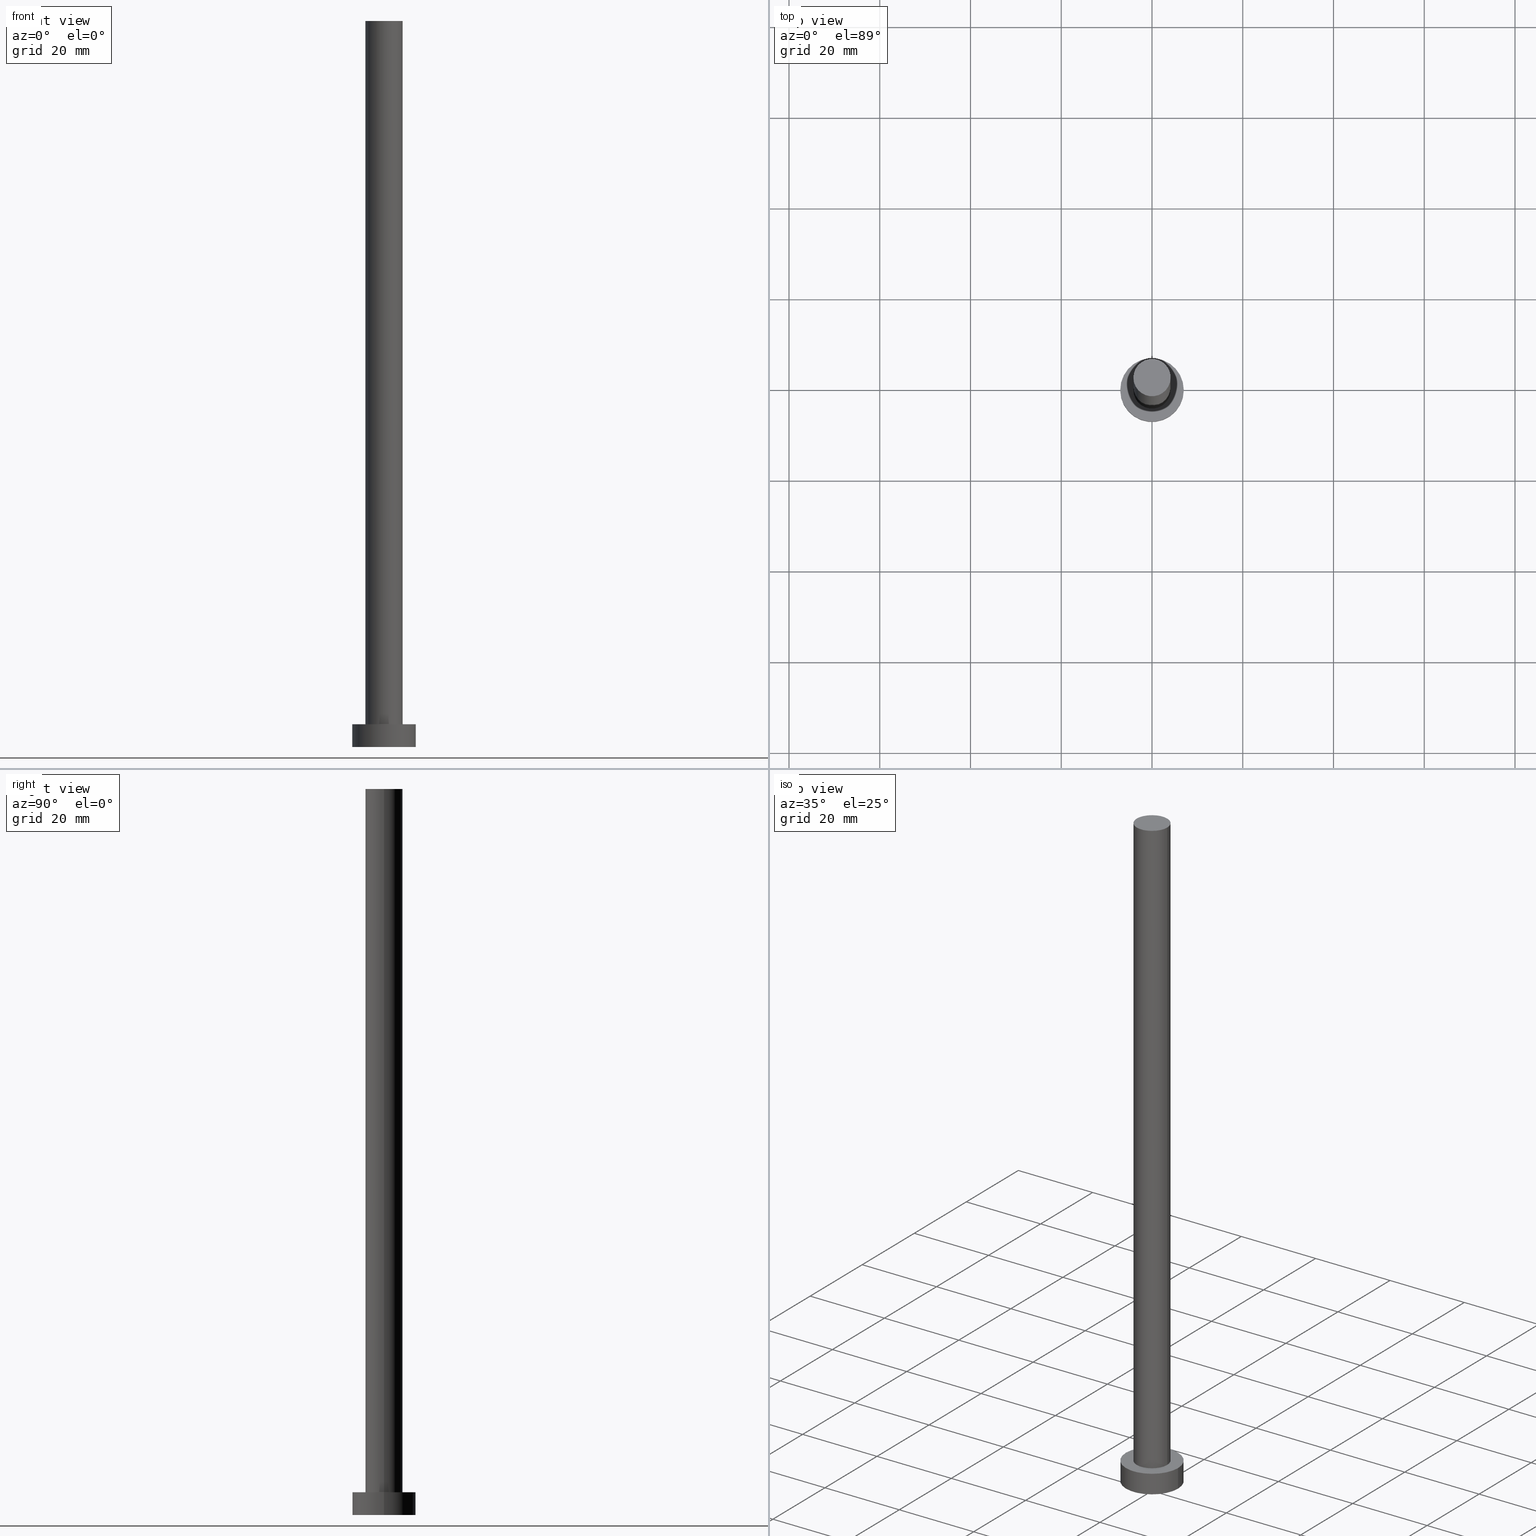
[diagram: canonical four-view strip — front | top / right | iso, engineering-drawing reading convention]
A machine part, canonical four-view strip (front | top / right | iso — engineering-drawing reading convention). The complete STEP part file that produces these views, byte-faithful:
ISO-10303-21;
HEADER;
FILE_DESCRIPTION (( 'STEP AP203' ),
    '1' );
FILE_NAME ('6110.STEP',
    '2023-02-13T14:21:29',
    ( '' ),
    ( '' ),
    'SwSTEP 2.0',
    'SolidWorks 2019',
    '' );
FILE_SCHEMA (( 'CONFIG_CONTROL_DESIGN' ));
ENDSEC;

DATA;
#1 = APPROVAL_PERSON_ORGANIZATION ( #241, #152, #120 ) ;
#2 = DIRECTION ( 'NONE',  ( -0.000000000000000000, -0.000000000000000000, -1.000000000000000000 ) ) ;
#3 = DATE_AND_TIME ( #201, #7 ) ;
#4 = DIRECTION ( 'NONE',  ( 1.000000000000000000, 0.000000000000000000, -0.000000000000000000 ) ) ;
#5 =( NAMED_UNIT ( * ) PLANE_ANGLE_UNIT ( ) SI_UNIT ( $, .RADIAN. ) );
#6 = ADVANCED_FACE ( 'NONE', ( #39 ), #236, .T. ) ;
#7 = LOCAL_TIME ( 15, 21, 29.00000000000000000, #8 ) ;
#8 = COORDINATED_UNIVERSAL_TIME_OFFSET ( 1, 0, .AHEAD. ) ;
#9 = EDGE_LOOP ( 'NONE', ( #127, #65 ) ) ;
#10 = DIRECTION ( 'NONE',  ( 1.000000000000000000, 0.000000000000000000, 0.000000000000000000 ) ) ;
#11 = COORDINATED_UNIVERSAL_TIME_OFFSET ( 1, 0, .AHEAD. ) ;
#12 = EDGE_LOOP ( 'NONE', ( #105, #55 ) ) ;
#13 = CC_DESIGN_PERSON_AND_ORGANIZATION_ASSIGNMENT ( #249, #87, ( #148 ) ) ;
#14 = CARTESIAN_POINT ( 'NONE',  ( 0.000000000000000000, 0.000000000000000000, 5.000000000000000000 ) ) ;
#15 = AXIS2_PLACEMENT_3D ( 'NONE', #253, #135, #110 ) ;
#16 = CIRCLE ( 'NONE', #84, 4.099999999999999645 ) ;
#17 = DIRECTION ( 'NONE',  ( 0.000000000000000000, 0.000000000000000000, 1.000000000000000000 ) ) ;
#18 = DIRECTION ( 'NONE',  ( 1.000000000000000000, 0.000000000000000000, 0.000000000000000000 ) ) ;
#19 = CC_DESIGN_PERSON_AND_ORGANIZATION_ASSIGNMENT ( #145, #57, ( #46 ) ) ;
#20 = ORIENTED_EDGE ( 'NONE', *, *, #112, .F. ) ;
#21 = DIRECTION ( 'NONE',  ( 0.000000000000000000, 0.000000000000000000, 1.000000000000000000 ) ) ;
#22 = CALENDAR_DATE ( 2023, 13, 2 ) ;
#23 = ORIENTED_EDGE ( 'NONE', *, *, #158, .F. ) ;
#24 = CIRCLE ( 'NONE', #162, 4.099999999999999645 ) ;
#25 = CARTESIAN_POINT ( 'NONE',  ( 0.000000000000000000, 0.000000000000000000, 160.0000000000000000 ) ) ;
#26 = PLANE ( 'NONE',  #89 ) ;
#27 = ORIENTED_EDGE ( 'NONE', *, *, #214, .T. ) ;
#28 = PLANE ( 'NONE',  #204 ) ;
#29 = SECURITY_CLASSIFICATION_LEVEL ( 'unclassified' ) ;
#30 = EDGE_LOOP ( 'NONE', ( #147, #97, #121, #254 ) ) ;
#31 = CARTESIAN_POINT ( 'NONE',  ( 0.000000000000000000, 0.000000000000000000, 0.000000000000000000 ) ) ;
#32 = CALENDAR_DATE ( 2023, 13, 2 ) ;
#33 = LOCAL_TIME ( 15, 21, 29.00000000000000000, #86 ) ;
#34 = ORIENTED_EDGE ( 'NONE', *, *, #155, .T. ) ;
#35 = DIRECTION ( 'NONE',  ( 0.000000000000000000, 0.000000000000000000, 1.000000000000000000 ) ) ;
#36 = DIRECTION ( 'NONE',  ( -1.000000000000000000, 0.000000000000000000, 0.000000000000000000 ) ) ;
#37 = CARTESIAN_POINT ( 'NONE',  ( 0.000000000000000000, 0.000000000000000000, 5.000000000000000000 ) ) ;
#38 = CIRCLE ( 'NONE', #221, 7.000000000000000000 ) ;
#39 = FACE_OUTER_BOUND ( 'NONE', #45, .T. ) ;
#40 = ORIENTED_EDGE ( 'NONE', *, *, #216, .F. ) ;
#41 = FACE_OUTER_BOUND ( 'NONE', #12, .T. ) ;
#42 = PRODUCT_DEFINITION_SHAPE ( 'NONE', 'NONE',  #206 ) ;
#43 = ADVANCED_FACE ( 'NONE', ( #126 ), #194, .T. ) ;
#44 = CARTESIAN_POINT ( 'NONE',  ( 0.000000000000000000, 0.000000000000000000, 5.000000000000000000 ) ) ;
#45 = EDGE_LOOP ( 'NONE', ( #40, #234, #170, #193 ) ) ;
#46 = PRODUCT ( '6110', '6110', '', ( #202 ) ) ;
#47 = PRODUCT_RELATED_PRODUCT_CATEGORY ( 'detail', '', ( #46 ) ) ;
#48 = AXIS2_PLACEMENT_3D ( 'NONE', #151, #255, #82 ) ;
#49 = FACE_OUTER_BOUND ( 'NONE', #63, .T. ) ;
#50 = PERSON_AND_ORGANIZATION ( #224, #153 ) ;
#51 = VECTOR ( 'NONE', #95, 1000.000000000000000 ) ;
#52 = CC_DESIGN_APPROVAL ( #152, ( #206 ) ) ;
#53 = CARTESIAN_POINT ( 'NONE',  ( 0.000000000000000000, 0.000000000000000000, 160.0000000000000000 ) ) ;
#54 = MANIFOLD_SOLID_BREP ( 'P�idat vysunut�m3', #131 ) ;
#55 = ORIENTED_EDGE ( 'NONE', *, *, #64, .F. ) ;
#56 = APPLICATION_CONTEXT ( 'configuration controlled 3d designs of mechanical parts and assemblies' ) ;
#57 = PERSON_AND_ORGANIZATION_ROLE ( 'design_owner' ) ;
#58 = EDGE_CURVE ( 'NONE', #178, #196, #106, .T. ) ;
#59 = LINE ( 'NONE', #209, #113 ) ;
#60 = APPROVAL_PERSON_ORGANIZATION ( #231, #169, #123 ) ;
#61 = VERTEX_POINT ( 'NONE', #165 ) ;
#62 = CARTESIAN_POINT ( 'NONE',  ( 0.000000000000000000, 0.000000000000000000, 160.0000000000000000 ) ) ;
#63 = EDGE_LOOP ( 'NONE', ( #246, #142 ) ) ;
#64 = EDGE_CURVE ( 'NONE', #196, #80, #128, .T. ) ;
#65 = ORIENTED_EDGE ( 'NONE', *, *, #210, .F. ) ;
#66 = CC_DESIGN_DATE_AND_TIME_ASSIGNMENT ( #174, #115, ( #206 ) ) ;
#67 = ADVANCED_FACE ( 'NONE', ( #167, #49 ), #26, .T. ) ;
#68 = AXIS2_PLACEMENT_3D ( 'NONE', #31, #122, #98 ) ;
#69 = DIRECTION ( 'NONE',  ( 0.000000000000000000, 0.000000000000000000, 1.000000000000000000 ) ) ;
#70 = VERTEX_POINT ( 'NONE', #90 ) ;
#71 = CC_DESIGN_DATE_AND_TIME_ASSIGNMENT ( #222, #243, ( #148 ) ) ;
#72 = PERSON_AND_ORGANIZATION_ROLE ( 'design_supplier' ) ;
#73 = CARTESIAN_POINT ( 'NONE',  ( -4.099999999999999645, 0.000000000000000000, 5.000000000000000000 ) ) ;
#74 = APPLICATION_PROTOCOL_DEFINITION ( 'international standard', 'config_control_design', 1994, #149 ) ;
#75 = CARTESIAN_POINT ( 'NONE',  ( -7.000000000000000000, 0.000000000000000000, 0.000000000000000000 ) ) ;
#76 = DATE_AND_TIME ( #250, #156 ) ;
#77 = AXIS2_PLACEMENT_3D ( 'NONE', #235, #35, #10 ) ;
#78 = DIRECTION ( 'NONE',  ( 1.000000000000000000, 0.000000000000000000, 0.000000000000000000 ) ) ;
#79 = CIRCLE ( 'NONE', #68, 7.000000000000000000 ) ;
#80 = VERTEX_POINT ( 'NONE', #75 ) ;
#81 = DIRECTION ( 'NONE',  ( -1.000000000000000000, 0.000000000000000000, 0.000000000000000000 ) ) ;
#82 = DIRECTION ( 'NONE',  ( 1.000000000000000000, 0.000000000000000000, -0.000000000000000000 ) ) ;
#83 = VECTOR ( 'NONE', #2, 1000.000000000000000 ) ;
#84 = AXIS2_PLACEMENT_3D ( 'NONE', #53, #248, #226 ) ;
#85 =( NAMED_UNIT ( * ) SI_UNIT ( $, .STERADIAN. ) SOLID_ANGLE_UNIT ( ) );
#86 = COORDINATED_UNIVERSAL_TIME_OFFSET ( 1, 0, .AHEAD. ) ;
#87 = PERSON_AND_ORGANIZATION_ROLE ( 'classification_officer' ) ;
#88 = DIRECTION ( 'NONE',  ( 0.000000000000000000, 0.000000000000000000, 1.000000000000000000 ) ) ;
#89 = AXIS2_PLACEMENT_3D ( 'NONE', #91, #88, #4 ) ;
#90 = CARTESIAN_POINT ( 'NONE',  ( 4.099999999999999645, 5.021051876504147385E-16, 5.000000000000000000 ) ) ;
#91 = CARTESIAN_POINT ( 'NONE',  ( 0.000000000000000000, 0.000000000000000000, 5.000000000000000000 ) ) ;
#92 = AXIS2_PLACEMENT_3D ( 'NONE', #102, #103, #81 ) ;
#93 = APPROVAL_ROLE ( '' ) ;
#94 = DESIGN_CONTEXT ( 'detailed design', #56, 'design' ) ;
#95 = DIRECTION ( 'NONE',  ( -0.000000000000000000, -0.000000000000000000, -1.000000000000000000 ) ) ;
#96 = AXIS2_PLACEMENT_3D ( 'NONE', #44, #238, #163 ) ;
#97 = ORIENTED_EDGE ( 'NONE', *, *, #58, .T. ) ;
#98 = DIRECTION ( 'NONE',  ( 1.000000000000000000, 0.000000000000000000, 0.000000000000000000 ) ) ;
#99 = VERTEX_POINT ( 'NONE', #73 ) ;
#100 = EDGE_LOOP ( 'NONE', ( #208, #125 ) ) ;
#101 = AXIS2_PLACEMENT_3D ( 'NONE', #62, #213, #36 ) ;
#102 = CARTESIAN_POINT ( 'NONE',  ( 0.000000000000000000, 0.000000000000000000, 5.000000000000000000 ) ) ;
#103 = DIRECTION ( 'NONE',  ( -0.000000000000000000, -0.000000000000000000, -1.000000000000000000 ) ) ;
#104 = CARTESIAN_POINT ( 'NONE',  ( 7.000000000000000000, 8.572527594031473190E-16, 5.000000000000000000 ) ) ;
#105 = ORIENTED_EDGE ( 'NONE', *, *, #173, .F. ) ;
#106 = LINE ( 'NONE', #111, #83 ) ;
#107 = PRODUCT_DEFINITION_FORMATION_WITH_SPECIFIED_SOURCE ( 'LIBOVOLN�', '', #46, .NOT_KNOWN. ) ;
#108 = DIRECTION ( 'NONE',  ( 0.000000000000000000, 0.000000000000000000, 1.000000000000000000 ) ) ;
#109 = CYLINDRICAL_SURFACE ( 'NONE', #96, 7.000000000000000000 ) ;
#110 = DIRECTION ( 'NONE',  ( -1.000000000000000000, 0.000000000000000000, 0.000000000000000000 ) ) ;
#111 = CARTESIAN_POINT ( 'NONE',  ( 7.000000000000000000, 8.572527594031473190E-16, 5.000000000000000000 ) ) ;
#112 = EDGE_CURVE ( 'NONE', #61, #178, #38, .T. ) ;
#113 = VECTOR ( 'NONE', #245, 1000.000000000000000 ) ;
#114 =( LENGTH_UNIT ( ) NAMED_UNIT ( * ) SI_UNIT ( .MILLI., .METRE. ) );
#115 = DATE_TIME_ROLE ( 'creation_date' ) ;
#116 = APPLICATION_PROTOCOL_DEFINITION ( 'international standard', 'config_control_design', 1994, #56 ) ;
#117 = PERSON_AND_ORGANIZATION ( #224, #153 ) ;
#118 = LINE ( 'NONE', #190, #51 ) ;
#119 = EDGE_CURVE ( 'NONE', #178, #61, #239, .T. ) ;
#120 = APPROVAL_ROLE ( '' ) ;
#121 = ORIENTED_EDGE ( 'NONE', *, *, #64, .T. ) ;
#122 = DIRECTION ( 'NONE',  ( 0.000000000000000000, 0.000000000000000000, 1.000000000000000000 ) ) ;
#123 = APPROVAL_ROLE ( '' ) ;
#124 = EDGE_LOOP ( 'NONE', ( #23, #132, #27, #34 ) ) ;
#125 = ORIENTED_EDGE ( 'NONE', *, *, #216, .T. ) ;
#126 = FACE_OUTER_BOUND ( 'NONE', #124, .T. ) ;
#127 = ORIENTED_EDGE ( 'NONE', *, *, #155, .F. ) ;
#128 = CIRCLE ( 'NONE', #242, 7.000000000000000000 ) ;
#129 = CC_DESIGN_PERSON_AND_ORGANIZATION_ASSIGNMENT ( #207, #247, ( #107 ) ) ;
#130 = ORIENTED_EDGE ( 'NONE', *, *, #230, .T. ) ;
#131 = CLOSED_SHELL ( 'NONE', ( #6, #203, #150, #67, #198, #43, #251 ) ) ;
#132 = ORIENTED_EDGE ( 'NONE', *, *, #134, .F. ) ;
#133 = PLANE ( 'NONE',  #48 ) ;
#134 = EDGE_CURVE ( 'NONE', #161, #141, #137, .T. ) ;
#135 = DIRECTION ( 'NONE',  ( -0.000000000000000000, -0.000000000000000000, -1.000000000000000000 ) ) ;
#136 = DIRECTION ( 'NONE',  ( 1.000000000000000000, 0.000000000000000000, -0.000000000000000000 ) ) ;
#137 = CIRCLE ( 'NONE', #77, 4.099999999999999645 ) ;
#138 = ADVANCED_BREP_SHAPE_REPRESENTATION ( '6110', ( #54, #211 ), #237 ) ;
#139 = APPROVAL_STATUS ( 'not_yet_approved' ) ;
#140 = CC_DESIGN_PERSON_AND_ORGANIZATION_ASSIGNMENT ( #117, #72, ( #107 ) ) ;
#141 = VERTEX_POINT ( 'NONE', #175 ) ;
#142 = ORIENTED_EDGE ( 'NONE', *, *, #119, .T. ) ;
#143 = CARTESIAN_POINT ( 'NONE',  ( 0.000000000000000000, 0.000000000000000000, 0.000000000000000000 ) ) ;
#144 = CC_DESIGN_APPROVAL ( #169, ( #107 ) ) ;
#145 = PERSON_AND_ORGANIZATION ( #224, #153 ) ;
#146 = DIRECTION ( 'NONE',  ( 0.000000000000000000, 0.000000000000000000, 1.000000000000000000 ) ) ;
#147 = ORIENTED_EDGE ( 'NONE', *, *, #119, .F. ) ;
#148 = SECURITY_CLASSIFICATION ( '', '', #29 ) ;
#149 = APPLICATION_CONTEXT ( 'configuration controlled 3d designs of mechanical parts and assemblies' ) ;
#150 = ADVANCED_FACE ( 'NONE', ( #195 ), #192, .T. ) ;
#151 = CARTESIAN_POINT ( 'NONE',  ( 0.000000000000000000, 0.000000000000000000, 0.000000000000000000 ) ) ;
#152 = APPROVAL ( #220, 'NEUR�EN�' ) ;
#153 = ORGANIZATION ( 'NEUR�EN�', 'NEUR�EN�', '' ) ;
#154 = CARTESIAN_POINT ( 'NONE',  ( -4.099999999999999645, 0.000000000000000000, 160.0000000000000000 ) ) ;
#155 = EDGE_CURVE ( 'NONE', #99, #70, #24, .T. ) ;
#156 = LOCAL_TIME ( 15, 21, 29.00000000000000000, #11 ) ;
#157 = DIRECTION ( 'NONE',  ( 1.000000000000000000, 0.000000000000000000, 0.000000000000000000 ) ) ;
#158 = EDGE_CURVE ( 'NONE', #141, #70, #118, .T. ) ;
#159 = APPROVAL_DATE_TIME ( #76, #169 ) ;
#160 = ORIENTED_EDGE ( 'NONE', *, *, #58, .F. ) ;
#161 = VERTEX_POINT ( 'NONE', #229 ) ;
#162 = AXIS2_PLACEMENT_3D ( 'NONE', #37, #17, #177 ) ;
#163 = DIRECTION ( 'NONE',  ( -1.000000000000000000, 0.000000000000000000, 0.000000000000000000 ) ) ;
#164 = CARTESIAN_POINT ( 'NONE',  ( 0.000000000000000000, 0.000000000000000000, 0.000000000000000000 ) ) ;
#165 = CARTESIAN_POINT ( 'NONE',  ( -7.000000000000000000, 0.000000000000000000, 5.000000000000000000 ) ) ;
#166 = CC_DESIGN_PERSON_AND_ORGANIZATION_ASSIGNMENT ( #50, #184, ( #206 ) ) ;
#167 = FACE_BOUND ( 'NONE', #9, .T. ) ;
#168 = APPROVAL_DATE_TIME ( #3, #152 ) ;
#169 = APPROVAL ( #139, 'NEUR�EN�' ) ;
#170 = ORIENTED_EDGE ( 'NONE', *, *, #210, .T. ) ;
#171 = SHAPE_DEFINITION_REPRESENTATION ( #42, #138 ) ;
#172 = APPROVAL_PERSON_ORGANIZATION ( #187, #225, #93 ) ;
#173 = EDGE_CURVE ( 'NONE', #80, #196, #79, .T. ) ;
#174 = DATE_AND_TIME ( #32, #218 ) ;
#175 = CARTESIAN_POINT ( 'NONE',  ( 4.099999999999999645, 5.021051876504147385E-16, 160.0000000000000000 ) ) ;
#176 = EDGE_LOOP ( 'NONE', ( #160, #20, #130, #217 ) ) ;
#177 = DIRECTION ( 'NONE',  ( 1.000000000000000000, 0.000000000000000000, 0.000000000000000000 ) ) ;
#178 = VERTEX_POINT ( 'NONE', #104 ) ;
#179 = CARTESIAN_POINT ( 'NONE',  ( 0.000000000000000000, 0.000000000000000000, 5.000000000000000000 ) ) ;
#180 = LOCAL_TIME ( 15, 21, 29.00000000000000000, #197 ) ;
#181 = DIRECTION ( 'NONE',  ( 1.000000000000000000, 0.000000000000000000, 0.000000000000000000 ) ) ;
#182 = CARTESIAN_POINT ( 'NONE',  ( 7.000000000000000000, 8.572527594031473190E-16, 0.000000000000000000 ) ) ;
#183 = FACE_OUTER_BOUND ( 'NONE', #100, .T. ) ;
#184 = PERSON_AND_ORGANIZATION_ROLE ( 'creator' ) ;
#185 = LINE ( 'NONE', #154, #191 ) ;
#186 = COORDINATED_UNIVERSAL_TIME_OFFSET ( 1, 0, .AHEAD. ) ;
#187 = PERSON_AND_ORGANIZATION ( #224, #153 ) ;
#188 = DIRECTION ( 'NONE',  ( -0.000000000000000000, -0.000000000000000000, -1.000000000000000000 ) ) ;
#189 = UNCERTAINTY_MEASURE_WITH_UNIT (LENGTH_MEASURE( 1.000000000000000082E-05 ), #114, 'distance_accuracy_value', 'NONE');
#190 = CARTESIAN_POINT ( 'NONE',  ( 4.099999999999999645, 5.021051876504147385E-16, 160.0000000000000000 ) ) ;
#191 = VECTOR ( 'NONE', #188, 1000.000000000000000 ) ;
#192 = CYLINDRICAL_SURFACE ( 'NONE', #92, 7.000000000000000000 ) ;
#193 = ORIENTED_EDGE ( 'NONE', *, *, #214, .F. ) ;
#194 = CYLINDRICAL_SURFACE ( 'NONE', #15, 4.099999999999999645 ) ;
#195 = FACE_OUTER_BOUND ( 'NONE', #176, .T. ) ;
#196 = VERTEX_POINT ( 'NONE', #182 ) ;
#197 = COORDINATED_UNIVERSAL_TIME_OFFSET ( 1, 0, .AHEAD. ) ;
#198 = ADVANCED_FACE ( 'NONE', ( #41 ), #133, .F. ) ;
#199 = CC_DESIGN_SECURITY_CLASSIFICATION ( #148, ( #107 ) ) ;
#200 = DATE_AND_TIME ( #22, #180 ) ;
#201 = CALENDAR_DATE ( 2023, 13, 2 ) ;
#202 = MECHANICAL_CONTEXT ( 'NONE', #149, 'mechanical' ) ;
#203 = ADVANCED_FACE ( 'NONE', ( #240 ), #109, .T. ) ;
#204 = AXIS2_PLACEMENT_3D ( 'NONE', #25, #69, #136 ) ;
#205 = APPROVAL_DATE_TIME ( #200, #225 ) ;
#206 = PRODUCT_DEFINITION ( 'NEZN�M�', '', #107, #94 ) ;
#207 = PERSON_AND_ORGANIZATION ( #224, #153 ) ;
#208 = ORIENTED_EDGE ( 'NONE', *, *, #134, .T. ) ;
#209 = CARTESIAN_POINT ( 'NONE',  ( -7.000000000000000000, 0.000000000000000000, 5.000000000000000000 ) ) ;
#210 = EDGE_CURVE ( 'NONE', #70, #99, #223, .T. ) ;
#211 = AXIS2_PLACEMENT_3D ( 'NONE', #143, #21, #18 ) ;
#212 = APPROVAL_STATUS ( 'not_yet_approved' ) ;
#213 = DIRECTION ( 'NONE',  ( -0.000000000000000000, -0.000000000000000000, -1.000000000000000000 ) ) ;
#214 = EDGE_CURVE ( 'NONE', #161, #99, #185, .T. ) ;
#215 = DIRECTION ( 'NONE',  ( 0.000000000000000000, 0.000000000000000000, 1.000000000000000000 ) ) ;
#216 = EDGE_CURVE ( 'NONE', #141, #161, #16, .T. ) ;
#217 = ORIENTED_EDGE ( 'NONE', *, *, #173, .T. ) ;
#218 = LOCAL_TIME ( 15, 21, 29.00000000000000000, #186 ) ;
#219 = DIRECTION ( 'NONE',  ( 1.000000000000000000, 0.000000000000000000, 0.000000000000000000 ) ) ;
#220 = APPROVAL_STATUS ( 'not_yet_approved' ) ;
#221 = AXIS2_PLACEMENT_3D ( 'NONE', #233, #252, #157 ) ;
#222 = DATE_AND_TIME ( #228, #33 ) ;
#223 = CIRCLE ( 'NONE', #227, 4.099999999999999645 ) ;
#224 = PERSON ( 'NEUR�EN�', 'NEUR�EN�', 'NEUR�EN�', ('NEUR�EN�'), ('NEUR�EN�'), ('NEUR�EN�') ) ;
#225 = APPROVAL ( #212, 'NEUR�EN�' ) ;
#226 = DIRECTION ( 'NONE',  ( 1.000000000000000000, 0.000000000000000000, 0.000000000000000000 ) ) ;
#227 = AXIS2_PLACEMENT_3D ( 'NONE', #179, #146, #181 ) ;
#228 = CALENDAR_DATE ( 2023, 13, 2 ) ;
#229 = CARTESIAN_POINT ( 'NONE',  ( -4.099999999999999645, 0.000000000000000000, 160.0000000000000000 ) ) ;
#230 = EDGE_CURVE ( 'NONE', #61, #80, #59, .T. ) ;
#231 = PERSON_AND_ORGANIZATION ( #224, #153 ) ;
#232 = AXIS2_PLACEMENT_3D ( 'NONE', #14, #215, #78 ) ;
#233 = CARTESIAN_POINT ( 'NONE',  ( 0.000000000000000000, 0.000000000000000000, 5.000000000000000000 ) ) ;
#234 = ORIENTED_EDGE ( 'NONE', *, *, #158, .T. ) ;
#235 = CARTESIAN_POINT ( 'NONE',  ( 0.000000000000000000, 0.000000000000000000, 160.0000000000000000 ) ) ;
#236 = CYLINDRICAL_SURFACE ( 'NONE', #101, 4.099999999999999645 ) ;
#237 =( GEOMETRIC_REPRESENTATION_CONTEXT ( 3 ) GLOBAL_UNCERTAINTY_ASSIGNED_CONTEXT ( ( #189 ) ) GLOBAL_UNIT_ASSIGNED_CONTEXT ( ( #114, #5, #85 ) ) REPRESENTATION_CONTEXT ( 'NONE', 'WORKASPACE' ) );
#238 = DIRECTION ( 'NONE',  ( -0.000000000000000000, -0.000000000000000000, -1.000000000000000000 ) ) ;
#239 = CIRCLE ( 'NONE', #232, 7.000000000000000000 ) ;
#240 = FACE_OUTER_BOUND ( 'NONE', #30, .T. ) ;
#241 = PERSON_AND_ORGANIZATION ( #224, #153 ) ;
#242 = AXIS2_PLACEMENT_3D ( 'NONE', #164, #108, #219 ) ;
#243 = DATE_TIME_ROLE ( 'classification_date' ) ;
#244 = CC_DESIGN_APPROVAL ( #225, ( #148 ) ) ;
#245 = DIRECTION ( 'NONE',  ( -0.000000000000000000, -0.000000000000000000, -1.000000000000000000 ) ) ;
#246 = ORIENTED_EDGE ( 'NONE', *, *, #112, .T. ) ;
#247 = PERSON_AND_ORGANIZATION_ROLE ( 'creator' ) ;
#248 = DIRECTION ( 'NONE',  ( 0.000000000000000000, 0.000000000000000000, 1.000000000000000000 ) ) ;
#249 = PERSON_AND_ORGANIZATION ( #224, #153 ) ;
#250 = CALENDAR_DATE ( 2023, 13, 2 ) ;
#251 = ADVANCED_FACE ( 'NONE', ( #183 ), #28, .T. ) ;
#252 = DIRECTION ( 'NONE',  ( 0.000000000000000000, 0.000000000000000000, 1.000000000000000000 ) ) ;
#253 = CARTESIAN_POINT ( 'NONE',  ( 0.000000000000000000, 0.000000000000000000, 160.0000000000000000 ) ) ;
#254 = ORIENTED_EDGE ( 'NONE', *, *, #230, .F. ) ;
#255 = DIRECTION ( 'NONE',  ( 0.000000000000000000, 0.000000000000000000, 1.000000000000000000 ) ) ;
ENDSEC;
END-ISO-10303-21;
